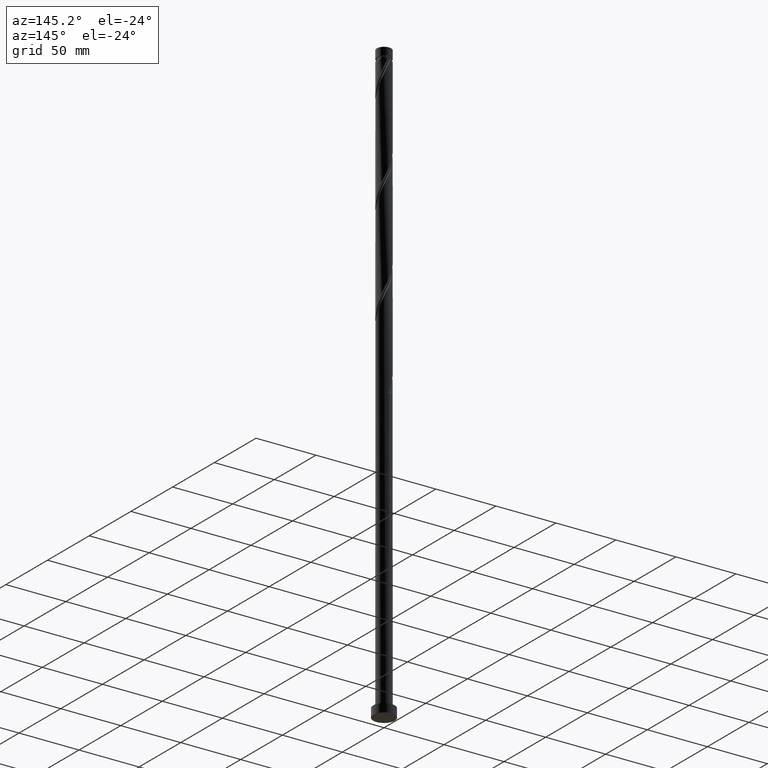
[diagram: clean part render]
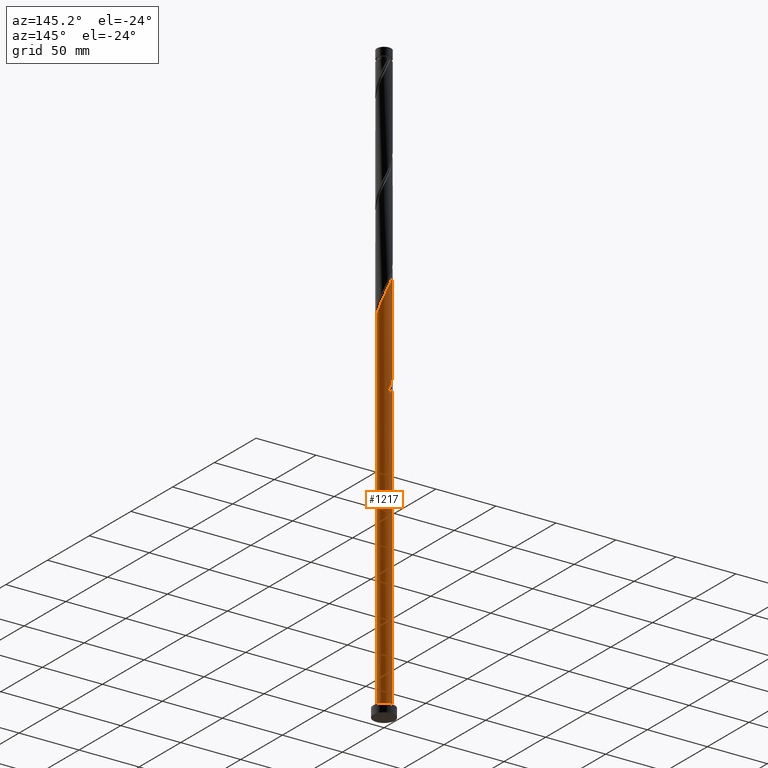
[diagram: same view with one face highlighted and labeled with its STEP entity id]
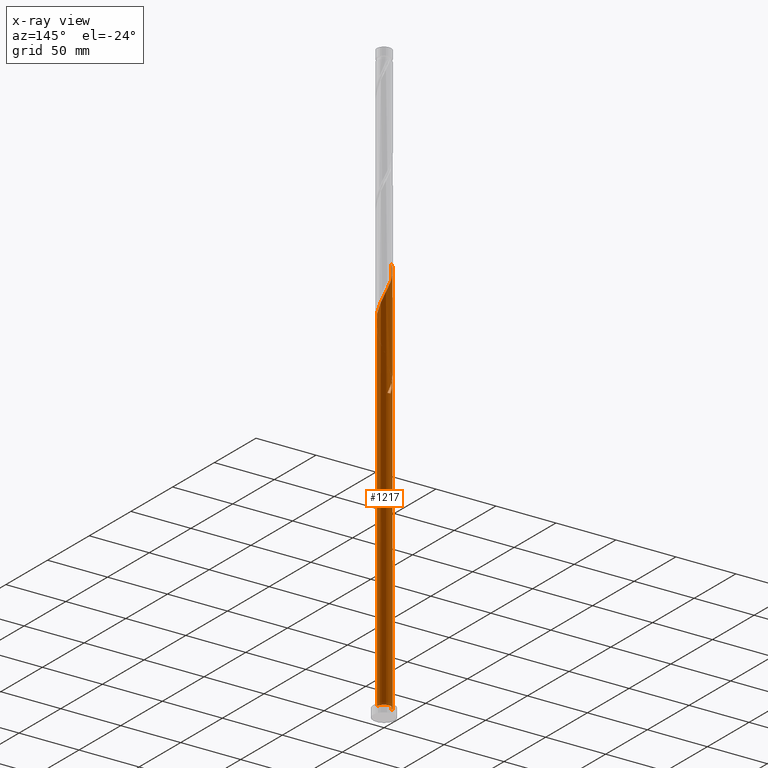
[diagram: x-ray of the same camera — body ghosted, the highlighted face saturated]
A machine part, auxiliary view. The second image highlights one B-rep face of the part: STEP entity #1217.
The next image is the same camera in x-ray: the body ghosted, the highlighted face saturated — about 0% of this face is hidden behind the body in this view.
In plain terms, the highlighted cylindrical surface (edge-blend (fillet) strip) has radius 6 mm, axis along (-0, -0, -1).
Its self-contained STEP definition (entity closure, byte-faithful):
#28 = DIRECTION ( 'NONE',  ( -0.000000000000000000, -0.000000000000000000, -1.000000000000000000 ) ) ;
#36 = CARTESIAN_POINT ( 'NONE',  ( -1.193984924527948577, 5.880000000000010552, 324.2800659415375435 ) ) ;
#45 = CARTESIAN_POINT ( 'NONE',  ( -5.552383803080857660, 2.273990787862928631, 337.3008992748709716 ) ) ;
#55 = VERTEX_POINT ( 'NONE', #1713 ) ;
#89 = CIRCLE ( 'NONE', #229, 6.000000000000000888 ) ;
#103 = CARTESIAN_POINT ( 'NONE',  ( -0.5670319816967425153, 6.002307453555054906, 244.8529826082042007 ) ) ;
#126 = CARTESIAN_POINT ( 'NONE',  ( -6.000000000000000888, 0.000000000000000000, 7.000000000000000000 ) ) ;
#133 = CARTESIAN_POINT ( 'NONE',  ( -3.806173212611410950, 4.675710161127272002, 252.6654826082042007 ) ) ;
#142 = CARTESIAN_POINT ( 'NONE',  ( -6.000000000000010658, -1.042067320674493744E-14, 259.1232022968740694 ) ) ;
#144 = CARTESIAN_POINT ( 'NONE',  ( 1.727128715119907287, 5.776352346998741893, 317.7696492748708579 ) ) ;
#165 = ORIENTED_EDGE ( 'NONE', *, *, #1079, .T. ) ;
#171 = EDGE_CURVE ( 'NONE', #509, #2027, #1478, .T. ) ;
#181 = CARTESIAN_POINT ( 'NONE',  ( 5.999952352179564130, 0.02391174554553667300, 300.8425659415376003 ) ) ;
#191 = CARTESIAN_POINT ( 'NONE',  ( -0.6148554727878237092, 5.997597250804064473, 322.9779826082042291 ) ) ;
#198 = CYLINDRICAL_SURFACE ( 'NONE', #1289, 6.000000000000000888 ) ;
#205 = CARTESIAN_POINT ( 'NONE',  ( -4.675710161127278219, 3.806173212611418943, 333.3946492748709716 ) ) ;
#217 = DIRECTION ( 'NONE',  ( -0.000000000000000000, -0.000000000000000000, -1.000000000000000000 ) ) ;
#229 = AXIS2_PLACEMENT_3D ( 'NONE', #1752, #2074, #434 ) ;
#261 = CARTESIAN_POINT ( 'NONE',  ( -6.000000000000000888, 0.01195592024558825815, 264.4105760316837177 ) ) ;
#271 =( BOUNDED_CURVE ( )  B_SPLINE_CURVE ( 2, ( #2039, #261, #292, #1613, #1740, #1719, #1248, #763, #1090, #1926, #423, #133, #1914, #1261, #624, #603, #1078, #103, #280, #918, #931 ),
 .UNSPECIFIED., .F., .T. ) 
 B_SPLINE_CURVE_WITH_KNOTS ( ( 3, 2, 2, 2, 2, 2, 2, 2, 2, 2, 3 ),
 ( 0.9295286902180874833, 0.9296875000000000000, 0.9375000000000000000, 0.9453125000000000000, 0.9531250000000000000, 0.9609375000000000000, 0.9687500000000000000, 0.9765625000000000000, 0.9843750000000000000, 0.9921875000000000000, 1.000000000000000000 ),
 .UNSPECIFIED. ) 
 CURVE ( )  GEOMETRIC_REPRESENTATION_ITEM ( )  RATIONAL_B_SPLINE_CURVE ( ( 0.9089165573359436756, 0.9090019243628482126, 0.9090909090909398138, 0.9047133878838459209, 0.9090909090909398138, 0.9047133878838459209, 0.9090909090909398138, 0.9047133878838459209, 0.9090909090909398138, 0.9047133878838459209, 0.9090909090909398138, 0.9047133878838459209, 0.9090909090909398138, 0.9047133878838459209, 0.9090909090909398138, 0.9047133878838459209, 0.9090909090909398138, 0.9047133878838459209, 0.9090909090909398138, 0.9047133878838459209, 0.9090909090909398138 ) ) 
 REPRESENTATION_ITEM ( '' )  );
#277 = CARTESIAN_POINT ( 'NONE',  ( -3.353276816205138733, 4.975493402055845671, 246.1550659415375151 ) ) ;
#280 = CARTESIAN_POINT ( 'NONE',  ( 0.02391174554554039919, 5.999952352179555248, 243.5508992748708863 ) ) ;
#292 = CARTESIAN_POINT ( 'NONE',  ( -5.999952352179555248, 0.02391174554554061429, 264.3842326082042291 ) ) ;
#302 = CARTESIAN_POINT ( 'NONE',  ( -2.863233488642344948, 5.305762341528934556, 244.8529826082041438 ) ) ;
#327 = ORIENTED_EDGE ( 'NONE', *, *, #171, .F. ) ;
#330 = CARTESIAN_POINT ( 'NONE',  ( 5.997597250804064473, 0.6148554727878240422, 302.1446492748708010 ) ) ;
#344 = CARTESIAN_POINT ( 'NONE',  ( 4.645224462582758562, 3.843320143767928965, 309.9571492748708579 ) ) ;
#351 = ORIENTED_EDGE ( 'NONE', *, *, #615, .F. ) ;
#363 = EDGE_CURVE ( 'NONE', #1816, #1545, #1040, .T. ) ;
#377 = CARTESIAN_POINT ( 'NONE',  ( -3.843320143767929409, 4.645224462582758562, 330.7904826082042860 ) ) ;
#421 = EDGE_CURVE ( 'NONE', #820, #1126, #2008, .T. ) ;
#423 = CARTESIAN_POINT ( 'NONE',  ( -4.225698837597079205, 4.259515152447597153, 253.9675659415375719 ) ) ;
#434 = DIRECTION ( 'NONE',  ( -1.000000000000000000, 0.000000000000000000, 0.000000000000000000 ) ) ;
#444 = CARTESIAN_POINT ( 'NONE',  ( 6.000000000000010658, 8.335047501442204261E-15, 300.7898689635406981 ) ) ;
#471 = CARTESIAN_POINT ( 'NONE',  ( -5.552383803080857660, 2.273990787862928631, 253.9675659415375719 ) ) ;
#501 = CARTESIAN_POINT ( 'NONE',  ( 3.313513036608686235, 5.002062710145124491, 313.8633992748709147 ) ) ;
#509 = VERTEX_POINT ( 'NONE', #1050 ) ;
#511 = CARTESIAN_POINT ( 'NONE',  ( 2.820852860605953083, 5.328415259162973427, 315.1654826082042860 ) ) ;
#532 = CARTESIAN_POINT ( 'NONE',  ( -3.353276816205138733, 4.975493402055845671, 329.4883992748709147 ) ) ;
#537 = AXIS2_PLACEMENT_3D ( 'NONE', #669, #643, #1299 ) ;
#603 = CARTESIAN_POINT ( 'NONE',  ( -1.727128715119901736, 5.776352346998731235, 247.4571492748708863 ) ) ;
#615 = EDGE_CURVE ( 'NONE', #2027, #55, #271, .T. ) ;
#624 = CARTESIAN_POINT ( 'NONE',  ( -2.273990787862923302, 5.552383803080851443, 248.7592326082041723 ) ) ;
#643 = DIRECTION ( 'NONE',  ( 0.000000000000000000, 0.000000000000000000, 1.000000000000000000 ) ) ;
#665 = CARTESIAN_POINT ( 'NONE',  ( -1.193984924527948577, 5.880000000000010552, 240.9467326082042007 ) ) ;
#668 = CARTESIAN_POINT ( 'NONE',  ( -6.000000000000000888, 0.000000000000000000, 500.0000000000000000 ) ) ;
#669 = CARTESIAN_POINT ( 'NONE',  ( 0.000000000000000000, 0.000000000000000000, 7.000000000000000000 ) ) ;
#679 = EDGE_CURVE ( 'NONE', #820, #509, #1656, .T. ) ;
#699 = CARTESIAN_POINT ( 'NONE',  ( -5.776352346998743670, 1.727128715119906399, 338.6029826082041723 ) ) ;
#735 = ORIENTED_EDGE ( 'NONE', *, *, #803, .T. ) ;
#759 = CARTESIAN_POINT ( 'NONE',  ( -6.000000000000014211, 0.5788788895738785634, 257.8472221914581155 ) ) ;
#763 = CARTESIAN_POINT ( 'NONE',  ( -5.305762341528927450, 2.863233488642341840, 257.8738159415376003 ) ) ;
#796 = CARTESIAN_POINT ( 'NONE',  ( -4.675710161127278219, 3.806173212611418943, 250.0613159415375151 ) ) ;
#801 = CARTESIAN_POINT ( 'NONE',  ( -1.773114376268076775, 5.762402749195954854, 325.5821492748709147 ) ) ;
#803 = EDGE_CURVE ( 'NONE', #1641, #55, #89, .T. ) ;
#812 = CIRCLE ( 'NONE', #537, 6.000000000000000888 ) ;
#820 = VERTEX_POINT ( 'NONE', #444 ) ;
#845 = CARTESIAN_POINT ( 'NONE',  ( 5.534082545362443817, 2.318173932455211972, 306.0508992748710284 ) ) ;
#855 = CARTESIAN_POINT ( 'NONE',  ( -5.328415259162975204, 2.820852860605950418, 335.9988159415376003 ) ) ;
#918 = CARTESIAN_POINT ( 'NONE',  ( 0.6148554727878232651, 5.997597250804055591, 242.2488159415375151 ) ) ;
#921 = EDGE_CURVE ( 'NONE', #1641, #1816, #1866, .T. ) ;
#926 = CARTESIAN_POINT ( 'NONE',  ( -5.889329900276903729, 1.147080348408325401, 256.5717326082042291 ) ) ;
#931 = CARTESIAN_POINT ( 'NONE',  ( 1.193984924527950353, 5.879999999999999005, 240.9467326082042007 ) ) ;
#933 = VECTOR ( 'NONE', #1030, 1000.000000000000000 ) ;
#975 = CARTESIAN_POINT ( 'NONE',  ( 5.762402749195955742, 1.773114376268073666, 304.7488159415374867 ) ) ;
#984 = ORIENTED_EDGE ( 'NONE', *, *, #679, .F. ) ;
#996 = CARTESIAN_POINT ( 'NONE',  ( 4.975493402055844783, 3.353276816205139177, 308.6550659415376572 ) ) ;
#1030 = DIRECTION ( 'NONE',  ( -0.000000000000000000, -0.000000000000000000, -1.000000000000000000 ) ) ;
#1040 = LINE ( 'NONE', #1999, #933 ) ;
#1050 = CARTESIAN_POINT ( 'NONE',  ( -6.000000000000011546, 6.301609034520594667E-15, 342.4565356302075543 ) ) ;
#1068 = VECTOR ( 'NONE', #217, 1000.000000000000000 ) ;
#1078 = CARTESIAN_POINT ( 'NONE',  ( -1.147080348408322292, 5.889329900276893959, 246.1550659415375435 ) ) ;
#1079 = EDGE_CURVE ( 'NONE', #1126, #1545, #812, .T. ) ;
#1086 = CARTESIAN_POINT ( 'NONE',  ( -2.318173932455211528, 5.534082545362443817, 243.5508992748708579 ) ) ;
#1090 = CARTESIAN_POINT ( 'NONE',  ( -4.975493402055837677, 3.353276816205132516, 256.5717326082042291 ) ) ;
#1126 = VERTEX_POINT ( 'NONE', #1141 ) ;
#1129 = CARTESIAN_POINT ( 'NONE',  ( 2.273990787862928187, 5.552383803080857660, 316.4675659415375435 ) ) ;
#1141 = CARTESIAN_POINT ( 'NONE',  ( 6.000000000000000888, 7.347880794884120722E-16, 7.000000000000000000 ) ) ;
#1165 = CARTESIAN_POINT ( 'NONE',  ( 1.147080348408328954, 5.889329900276901952, 319.0717326082042291 ) ) ;
#1188 = CARTESIAN_POINT ( 'NONE',  ( -6.000000000000013323, 0.5788788895738770091, 341.1805555247913730 ) ) ;
#1213 = ORIENTED_EDGE ( 'NONE', *, *, #363, .F. ) ;
#1217 = ADVANCED_FACE ( 'NONE', ( #1321 ), #198, .T. ) ;
#1248 = CARTESIAN_POINT ( 'NONE',  ( -5.534082545362432271, 2.318173932455207975, 259.1758992748708579 ) ) ;
#1249 = VECTOR ( 'NONE', #28, 1000.000000000000000 ) ;
#1261 = CARTESIAN_POINT ( 'NONE',  ( -2.820852860605945533, 5.328415259162966322, 250.0613159415375719 ) ) ;
#1289 = AXIS2_PLACEMENT_3D ( 'NONE', #1799, #1965, #1788 ) ;
#1290 = CARTESIAN_POINT ( 'NONE',  ( -5.328415259162975204, 2.820852860605950418, 252.6654826082041438 ) ) ;
#1299 = DIRECTION ( 'NONE',  ( 1.000000000000000000, 0.000000000000000000, 0.000000000000000000 ) ) ;
#1307 = CARTESIAN_POINT ( 'NONE',  ( 6.000000000000010658, 8.335047501442204261E-15, 300.7898689635406981 ) ) ;
#1321 = FACE_OUTER_BOUND ( 'NONE', #2103, .T. ) ;
#1351 = CARTESIAN_POINT ( 'NONE',  ( -6.000000000000011546, 6.301609034520594667E-15, 342.4565356302075543 ) ) ;
#1372 = CARTESIAN_POINT ( 'NONE',  ( -1.193984924527948577, 5.880000000000010552, 240.9467326082042291 ) ) ;
#1384 = CARTESIAN_POINT ( 'NONE',  ( 6.000000000000000888, 7.347880794884120722E-16, 500.0000000000000000 ) ) ;
#1449 = CARTESIAN_POINT ( 'NONE',  ( -6.000000000000000000, 4.571042933203746211E-14, 264.4369295862009039 ) ) ;
#1455 = CARTESIAN_POINT ( 'NONE',  ( -2.318173932455211528, 5.534082545362443817, 326.8842326082041154 ) ) ;
#1477 = CARTESIAN_POINT ( 'NONE',  ( 0.5670319816967451798, 6.002307453555064676, 320.3738159415376572 ) ) ;
#1478 = LINE ( 'NONE', #668, #1249 ) ;
#1487 = CARTESIAN_POINT ( 'NONE',  ( 3.806173212611418055, 4.675710161127279996, 312.5613159415374298 ) ) ;
#1510 = CARTESIAN_POINT ( 'NONE',  ( -5.002062710145126267, 3.313513036608685347, 334.6967326082042291 ) ) ;
#1545 = VERTEX_POINT ( 'NONE', #126 ) ;
#1573 = CARTESIAN_POINT ( 'NONE',  ( -3.843320143767929409, 4.645224462582758562, 247.4571492748708863 ) ) ;
#1613 = CARTESIAN_POINT ( 'NONE',  ( -5.997597250804055591, 0.6148554727878231541, 263.0821492748708579 ) ) ;
#1635 = CARTESIAN_POINT ( 'NONE',  ( 5.305762341528935444, 2.863233488642343616, 307.3529826082042291 ) ) ;
#1641 = VERTEX_POINT ( 'NONE', #665 ) ;
#1654 = CARTESIAN_POINT ( 'NONE',  ( -0.02391174554553645443, 5.999952352179564130, 321.6758992748708579 ) ) ;
#1656 =( BOUNDED_CURVE ( )  B_SPLINE_CURVE ( 2, ( #1307, #1950, #181, #330, #1819, #975, #845, #1635, #996, #344, #1972, #1487, #501, #511, #1129, #144, #1165, #1477, #1654, #191, #36, #801, #1455, #1665, #532, #377, #1832, #205, #1510, #855, #45, #699, #1997, #1188, #1351 ),
 .UNSPECIFIED., .F., .T. ) 
 B_SPLINE_CURVE_WITH_KNOTS ( ( 3, 2, 2, 2, 2, 2, 2, 2, 2, 2, 2, 2, 2, 2, 2, 2, 2, 3 ),
 ( 0.1795286902180870947, 0.1796875000000000000, 0.1875000000000000000, 0.1953125000000000000, 0.2031250000000000000, 0.2109375000000000000, 0.2187500000000000000, 0.2265625000000000000, 0.2343750000000000000, 0.2421875000000000000, 0.2500000000000000000, 0.2578125000000000000, 0.2656250000000000000, 0.2734375000000000000, 0.2812500000000000000, 0.2890625000000000000, 0.2968750000000000000, 0.3045286902180873723 ),
 .UNSPECIFIED. ) 
 CURVE ( )  GEOMETRIC_REPRESENTATION_ITEM ( )  RATIONAL_B_SPLINE_CURVE ( ( 0.9089165573359500039, 0.9090019243628548740, 0.9090909090909468082, 0.9047133878838529153, 0.9090909090909468082, 0.9047133878838529153, 0.9090909090909468082, 0.9047133878838529153, 0.9090909090909468082, 0.9047133878838529153, 0.9090909090909468082, 0.9047133878838529153, 0.9090909090909468082, 0.9047133878838529153, 0.9090909090909468082, 0.9047133878838529153, 0.9090909090909468082, 0.9047133878838529153, 0.9090909090909468082, 0.9047133878838529153, 0.9090909090909468082, 0.9047133878838529153, 0.9090909090909468082, 0.9047133878838529153, 0.9090909090909468082, 0.9047133878838529153, 0.9090909090909468082, 0.9047133878838529153, 0.9090909090909468082, 0.9047133878838529153, 0.9090909090909468082, 0.9047133878838529153, 0.9090909090909468082, 0.9048023726119446275, 0.9089165573359504480 ) ) 
 REPRESENTATION_ITEM ( '' )  );
#1665 = CARTESIAN_POINT ( 'NONE',  ( -2.863233488642344948, 5.305762341528934556, 328.1863159415375435 ) ) ;
#1713 = CARTESIAN_POINT ( 'NONE',  ( 1.193984924527950353, 5.879999999999999005, 240.9467326082042007 ) ) ;
#1719 = CARTESIAN_POINT ( 'NONE',  ( -5.762402749195944196, 1.773114376268075443, 260.4779826082042291 ) ) ;
#1728 = CARTESIAN_POINT ( 'NONE',  ( -4.259515152447604258, 4.225698837597088975, 248.7592326082042007 ) ) ;
#1740 = CARTESIAN_POINT ( 'NONE',  ( -5.879999999999999005, 1.193984924527949243, 261.7800659415376003 ) ) ;
#1746 = CARTESIAN_POINT ( 'NONE',  ( -6.000000000000010658, -1.042067320674493744E-14, 259.1232022968740694 ) ) ;
#1752 = CARTESIAN_POINT ( 'NONE',  ( 0.000000000000000000, 0.000000000000000000, 240.9467326082042007 ) ) ;
#1766 = CARTESIAN_POINT ( 'NONE',  ( -5.776352346998743670, 1.727128715119906399, 255.2696492748708863 ) ) ;
#1788 = DIRECTION ( 'NONE',  ( -1.000000000000000000, 0.000000000000000000, 0.000000000000000000 ) ) ;
#1799 = CARTESIAN_POINT ( 'NONE',  ( 0.000000000000000000, 0.000000000000000000, 500.0000000000000000 ) ) ;
#1816 = VERTEX_POINT ( 'NONE', #142 ) ;
#1819 = CARTESIAN_POINT ( 'NONE',  ( 5.880000000000010552, 1.193984924527949021, 303.4467326082041723 ) ) ;
#1832 = CARTESIAN_POINT ( 'NONE',  ( -4.259515152447604258, 4.225698837597088975, 332.0925659415377140 ) ) ;
#1866 =( BOUNDED_CURVE ( )  B_SPLINE_CURVE ( 2, ( #1372, #2055, #1086, #302, #277, #1573, #1728, #796, #2089, #1290, #471, #1766, #926, #759, #1746 ),
 .UNSPECIFIED., .F., .T. ) 
 B_SPLINE_CURVE_WITH_KNOTS ( ( 3, 2, 2, 2, 2, 2, 2, 3 ),
 ( 0.000000000000000000, 0.007812500000000000000, 0.01562500000000000000, 0.02343750000000000000, 0.03125000000000000000, 0.03906250000000000000, 0.04687500000000000000, 0.05452869021808735145 ),
 .UNSPECIFIED. ) 
 CURVE ( )  GEOMETRIC_REPRESENTATION_ITEM ( )  RATIONAL_B_SPLINE_CURVE ( ( 0.9090909090909468082, 0.9047133878838529153, 0.9090909090909468082, 0.9047133878838529153, 0.9090909090909468082, 0.9047133878838529153, 0.9090909090909468082, 0.9047133878838529153, 0.9090909090909468082, 0.9047133878838529153, 0.9090909090909468082, 0.9047133878838529153, 0.9090909090909468082, 0.9048023726119446275, 0.9089165573359503369 ) ) 
 REPRESENTATION_ITEM ( '' )  );
#1883 = ORIENTED_EDGE ( 'NONE', *, *, #421, .T. ) ;
#1914 = CARTESIAN_POINT ( 'NONE',  ( -3.313513036608678242, 5.002062710145119162, 251.3633992748708295 ) ) ;
#1926 = CARTESIAN_POINT ( 'NONE',  ( -4.645224462582749680, 3.843320143767924080, 255.2696492748708863 ) ) ;
#1936 = ORIENTED_EDGE ( 'NONE', *, *, #921, .F. ) ;
#1950 = CARTESIAN_POINT ( 'NONE',  ( 6.000000000000010658, 0.01195592024555505901, 300.8162225180579981 ) ) ;
#1965 = DIRECTION ( 'NONE',  ( -0.000000000000000000, -0.000000000000000000, -1.000000000000000000 ) ) ;
#1972 = CARTESIAN_POINT ( 'NONE',  ( 4.225698837597090751, 4.259515152447602482, 311.2592326082042291 ) ) ;
#1997 = CARTESIAN_POINT ( 'NONE',  ( -5.889329900276903729, 1.147080348408325401, 339.9050659415376003 ) ) ;
#1999 = CARTESIAN_POINT ( 'NONE',  ( -6.000000000000000888, 0.000000000000000000, 500.0000000000000000 ) ) ;
#2008 = LINE ( 'NONE', #1384, #1068 ) ;
#2027 = VERTEX_POINT ( 'NONE', #1449 ) ;
#2039 = CARTESIAN_POINT ( 'NONE',  ( -6.000000000000000000, 4.571042933203746211E-14, 264.4369295862009039 ) ) ;
#2055 = CARTESIAN_POINT ( 'NONE',  ( -1.773114376268076775, 5.762402749195954854, 242.2488159415375719 ) ) ;
#2074 = DIRECTION ( 'NONE',  ( 0.000000000000000000, -0.000000000000000000, -1.000000000000000000 ) ) ;
#2089 = CARTESIAN_POINT ( 'NONE',  ( -5.002062710145126267, 3.313513036608685347, 251.3633992748708863 ) ) ;
#2103 = EDGE_LOOP ( 'NONE', ( #984, #1883, #165, #1213, #1936, #735, #351, #327 ) ) ;